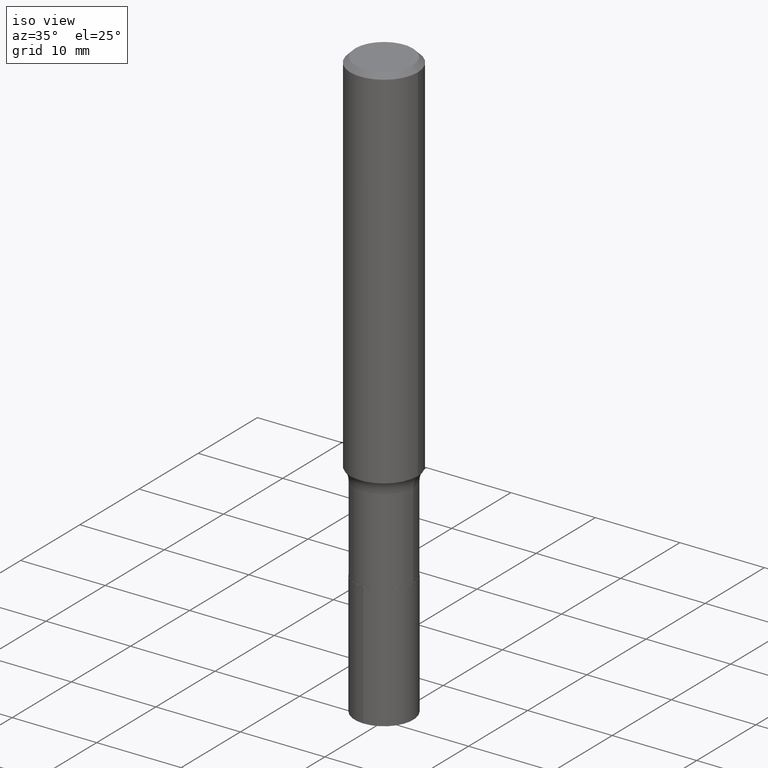
[diagram: clean part render]
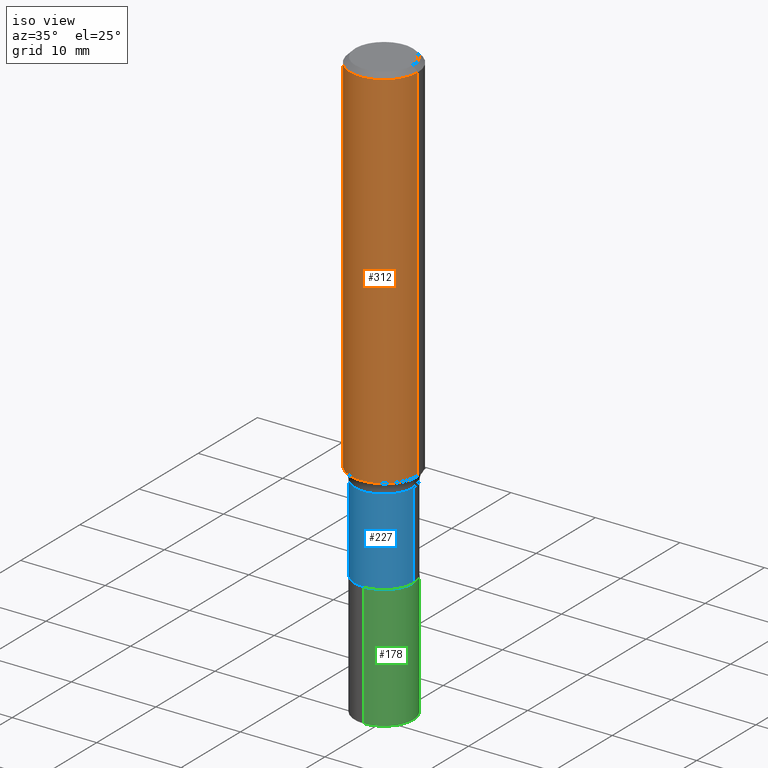
[diagram: same view with three faces highlighted in distinct colors, each labeled with its STEP entity id]
A machine part, iso view with three faces highlighted in distinct colors.
Their STEP definitions:

[orange] entity #312 — the highlighted cylindrical surface (partial cylindrical patch) has radius 4.0005 mm, axis along (-0, 0, 1).
#9 = CYLINDRICAL_SURFACE ( 'NONE', #380, 0.1575000000000000844 ) ;
#10 = CARTESIAN_POINT ( 'NONE',  ( -0.1575000000000002232, -4.898572338728670003E-15, -1.723531236041119241 ) ) ;
#13 = CARTESIAN_POINT ( 'NONE',  ( 0.1575000000000000011, -1.182302868365756679E-15, -0.02362500000000013201 ) ) ;
#14 = VERTEX_POINT ( 'NONE', #10 ) ;
#15 = EDGE_CURVE ( 'NONE', #330, #360, #297, .T. ) ;
#27 = DIRECTION ( 'NONE',  ( 1.000000000000000000, -6.982962677686265133E-15, 0.000000000000000000 ) ) ;
#45 = VECTOR ( 'NONE', #447, 39.37007874015748143 ) ;
#48 = CARTESIAN_POINT ( 'NONE',  ( 0.1575000000000002232, -7.117493769286417454E-15, -1.723531236041119241 ) ) ;
#56 = CARTESIAN_POINT ( 'NONE',  ( -0.1575000000000000844, 1.119104808822158392E-15, -7.747322767151481189E-30 ) ) ;
#76 = AXIS2_PLACEMENT_3D ( 'NONE', #212, #283, #27 ) ;
#87 = ORIENTED_EDGE ( 'NONE', *, *, #15, .F. ) ;
#88 = LINE ( 'NONE', #353, #160 ) ;
#112 = ORIENTED_EDGE ( 'NONE', *, *, #268, .F. ) ;
#158 = DIRECTION ( 'NONE',  ( 1.000000000000000000, -6.982962677686267499E-15, 4.876176775795936353E-29 ) ) ;
#160 = VECTOR ( 'NONE', #379, 39.37007874015748143 ) ;
#168 = FACE_OUTER_BOUND ( 'NONE', #187, .T. ) ;
#187 = EDGE_LOOP ( 'NONE', ( #112, #200, #272, #87 ) ) ;
#199 = CARTESIAN_POINT ( 'NONE',  ( 0.000000000000000000, 0.000000000000000000, 0.000000000000000000 ) ) ;
#200 = ORIENTED_EDGE ( 'NONE', *, *, #426, .T. ) ;
#212 = CARTESIAN_POINT ( 'NONE',  ( 4.214841874224268798E-29, -6.017677147550829184E-15, -1.723531236041119241 ) ) ;
#268 = EDGE_CURVE ( 'NONE', #14, #330, #338, .T. ) ;
#272 = ORIENTED_EDGE ( 'NONE', *, *, #405, .T. ) ;
#282 = CIRCLE ( 'NONE', #76, 0.1575000000000002232 ) ;
#283 = DIRECTION ( 'NONE',  ( -2.445468806185136597E-29, 3.491481338843145583E-15, 1.000000000000000000 ) ) ;
#291 = AXIS2_PLACEMENT_3D ( 'NONE', #337, #304, #445 ) ;
#297 = CIRCLE ( 'NONE', #291, 0.1575000000000000011 ) ;
#304 = DIRECTION ( 'NONE',  ( -2.445468806185136597E-29, 3.491481338843145583E-15, 1.000000000000000000 ) ) ;
#311 = CARTESIAN_POINT ( 'NONE',  ( -0.1575000000000000011, -1.930976888268340109E-15, -0.02362500000000013201 ) ) ;
#312 = ADVANCED_FACE ( 'NONE', ( #168 ), #9, .T. ) ;
#330 = VERTEX_POINT ( 'NONE', #311 ) ;
#337 = CARTESIAN_POINT ( 'NONE',  ( 5.777420054612417601E-31, -8.248624663016977839E-17, -0.02362500000000013201 ) ) ;
#338 = LINE ( 'NONE', #56, #45 ) ;
#353 = CARTESIAN_POINT ( 'NONE',  ( 0.1575000000000000844, -1.099816621735587677E-15, 7.679978421878603638E-30 ) ) ;
#360 = VERTEX_POINT ( 'NONE', #13 ) ;
#379 = DIRECTION ( 'NONE',  ( -2.445468806185136877E-29, 3.491481338843145188E-15, 1.000000000000000000 ) ) ;
#380 = AXIS2_PLACEMENT_3D ( 'NONE', #199, #416, #158 ) ;
#392 = VERTEX_POINT ( 'NONE', #48 ) ;
#405 = EDGE_CURVE ( 'NONE', #392, #360, #88, .T. ) ;
#416 = DIRECTION ( 'NONE',  ( -2.445468806185136597E-29, 3.491481338843145583E-15, 1.000000000000000000 ) ) ;
#426 = EDGE_CURVE ( 'NONE', #14, #392, #282, .T. ) ;
#445 = DIRECTION ( 'NONE',  ( 1.000000000000000000, -6.982962677686265922E-15, 0.000000000000000000 ) ) ;
#447 = DIRECTION ( 'NONE',  ( -2.445468806185136877E-29, 3.491481338843145188E-15, 1.000000000000000000 ) ) ;

[blue] entity #227 — the highlighted cylindrical surface (edge-blend (fillet) strip) has radius 3.4544 mm, axis along (-0, 0, 1).
#3 = VERTEX_POINT ( 'NONE', #370 ) ;
#30 = CARTESIAN_POINT ( 'NONE',  ( -0.1360000000000000098, 9.663381206337363222E-16, -6.689751722746672110E-30 ) ) ;
#58 = DIRECTION ( 'NONE',  ( -2.445468806185136597E-29, 3.491481338843145583E-15, 1.000000000000000000 ) ) ;
#86 = CARTESIAN_POINT ( 'NONE',  ( 0.000000000000000000, 0.000000000000000000, 0.000000000000000000 ) ) ;
#125 = CARTESIAN_POINT ( 'NONE',  ( 4.348288084277790698E-29, -6.208202968596996327E-15, -1.778099999999999792 ) ) ;
#135 = LINE ( 'NONE', #210, #256 ) ;
#165 = CARTESIAN_POINT ( 'NONE',  ( 0.1359999999999999820, -7.157885892762328978E-15, -1.778099999999999792 ) ) ;
#171 = DIRECTION ( 'NONE',  ( 1.000000000000000000, -6.982962677686265922E-15, 4.876176775795934672E-29 ) ) ;
#197 = AXIS2_PLACEMENT_3D ( 'NONE', #125, #269, #410 ) ;
#203 = ORIENTED_EDGE ( 'NONE', *, *, #457, .F. ) ;
#210 = CARTESIAN_POINT ( 'NONE',  ( 0.1360000000000000098, -9.496829241653322569E-16, 6.631600415082472006E-30 ) ) ;
#220 = ORIENTED_EDGE ( 'NONE', *, *, #396, .F. ) ;
#227 = ADVANCED_FACE ( 'NONE', ( #407 ), #234, .T. ) ;
#231 = ORIENTED_EDGE ( 'NONE', *, *, #302, .T. ) ;
#234 = CYLINDRICAL_SURFACE ( 'NONE', #273, 0.1360000000000000098 ) ;
#242 = DIRECTION ( 'NONE',  ( -2.445468806185136877E-29, 3.491481338843145188E-15, 1.000000000000000000 ) ) ;
#254 = VERTEX_POINT ( 'NONE', #165 ) ;
#256 = VECTOR ( 'NONE', #242, 39.37007874015748143 ) ;
#269 = DIRECTION ( 'NONE',  ( -2.445468806185136597E-29, 3.491481338843145583E-15, 1.000000000000000000 ) ) ;
#273 = AXIS2_PLACEMENT_3D ( 'NONE', #86, #344, #171 ) ;
#275 = DIRECTION ( 'NONE',  ( 1.000000000000000000, -6.982962677686265922E-15, 0.000000000000000000 ) ) ;
#287 = AXIS2_PLACEMENT_3D ( 'NONE', #341, #58, #275 ) ;
#296 = VERTEX_POINT ( 'NONE', #366 ) ;
#302 = EDGE_CURVE ( 'NONE', #3, #296, #335, .T. ) ;
#316 = CARTESIAN_POINT ( 'NONE',  ( -0.1359999999999999820, -5.944176319271559684E-15, -1.778099999999999792 ) ) ;
#335 = CIRCLE ( 'NONE', #287, 0.1360000000000000375 ) ;
#341 = CARTESIAN_POINT ( 'NONE',  ( 5.332100185006071663E-29, -7.612825911213594108E-15, -2.180400000000000116 ) ) ;
#344 = DIRECTION ( 'NONE',  ( -2.445468806185136597E-29, 3.491481338843145583E-15, 1.000000000000000000 ) ) ;
#366 = CARTESIAN_POINT ( 'NONE',  ( 0.1360000000000000375, -8.562508835378926759E-15, -2.180400000000000116 ) ) ;
#370 = CARTESIAN_POINT ( 'NONE',  ( -0.1360000000000000375, -5.944176319271559684E-15, -2.180400000000000116 ) ) ;
#372 = VECTOR ( 'NONE', #418, 39.37007874015748143 ) ;
#396 = EDGE_CURVE ( 'NONE', #443, #254, #449, .T. ) ;
#398 = ORIENTED_EDGE ( 'NONE', *, *, #461, .T. ) ;
#407 = FACE_OUTER_BOUND ( 'NONE', #411, .T. ) ;
#410 = DIRECTION ( 'NONE',  ( 1.000000000000000000, -6.982962677686269077E-15, 0.000000000000000000 ) ) ;
#411 = EDGE_LOOP ( 'NONE', ( #203, #231, #398, #220 ) ) ;
#418 = DIRECTION ( 'NONE',  ( -2.445468806185136877E-29, 3.491481338843145188E-15, 1.000000000000000000 ) ) ;
#443 = VERTEX_POINT ( 'NONE', #316 ) ;
#449 = CIRCLE ( 'NONE', #197, 0.1359999999999999820 ) ;
#454 = LINE ( 'NONE', #30, #372 ) ;
#457 = EDGE_CURVE ( 'NONE', #3, #443, #454, .T. ) ;
#461 = EDGE_CURVE ( 'NONE', #296, #254, #135, .T. ) ;

[green] entity #178 — the highlighted cylindrical surface (edge-blend (fillet) strip) has radius 3.4544 mm, axis along (-0, 0, 1).
#2 = AXIS2_PLACEMENT_3D ( 'NONE', #423, #134, #66 ) ;
#43 = VERTEX_POINT ( 'NONE', #415 ) ;
#46 = EDGE_CURVE ( 'NONE', #156, #49, #47, .T. ) ;
#47 = LINE ( 'NONE', #129, #307 ) ;
#49 = VERTEX_POINT ( 'NONE', #229 ) ;
#50 = DIRECTION ( 'NONE',  ( -2.445082877625027389E-29, 3.492034010506911501E-15, 1.000000000000000000 ) ) ;
#57 = DIRECTION ( 'NONE',  ( -2.445082877625027389E-29, 3.492034010506911501E-15, 1.000000000000000000 ) ) ;
#66 = DIRECTION ( 'NONE',  ( -6.982962677686265922E-15, -1.000000000000000000, 4.017423520094504617E-15 ) ) ;
#92 = ORIENTED_EDGE ( 'NONE', *, *, #216, .T. ) ;
#101 = DIRECTION ( 'NONE',  ( -6.982962677686265922E-15, -1.000000000000000000, 4.017423520094504617E-15 ) ) ;
#102 = EDGE_CURVE ( 'NONE', #49, #292, #236, .T. ) ;
#110 = ORIENTED_EDGE ( 'NONE', *, *, #116, .T. ) ;
#116 = EDGE_CURVE ( 'NONE', #156, #43, #170, .T. ) ;
#117 = EDGE_LOOP ( 'NONE', ( #110, #92, #363, #436 ) ) ;
#119 = AXIS2_PLACEMENT_3D ( 'NONE', #284, #315, #101 ) ;
#129 = CARTESIAN_POINT ( 'NONE',  ( -9.496829241652788115E-16, -0.1360000000000076148, -2.180899999999999395 ) ) ;
#134 = DIRECTION ( 'NONE',  ( -2.445082877625027389E-29, 3.492034010506911501E-15, 1.000000000000000000 ) ) ;
#143 = CYLINDRICAL_SURFACE ( 'NONE', #2, 0.1360000000000000098 ) ;
#156 = VERTEX_POINT ( 'NONE', #281 ) ;
#170 = CIRCLE ( 'NONE', #255, 0.1360000000000000098 ) ;
#178 = ADVANCED_FACE ( 'NONE', ( #453 ), #143, .T. ) ;
#183 = VECTOR ( 'NONE', #50, 39.37007874015748143 ) ;
#216 = EDGE_CURVE ( 'NONE', #43, #292, #404, .T. ) ;
#229 = CARTESIAN_POINT ( 'NONE',  ( -9.496829241652788115E-16, -0.1360000000000076148, -2.180899999999999395 ) ) ;
#236 = CIRCLE ( 'NONE', #119, 0.1360000000000000098 ) ;
#255 = AXIS2_PLACEMENT_3D ( 'NONE', #277, #318, #459 ) ;
#271 = CARTESIAN_POINT ( 'NONE',  ( 9.663381206338035726E-16, 0.1359999999999923770, -2.180900000000000283 ) ) ;
#277 = CARTESIAN_POINT ( 'NONE',  ( 6.739245574043556692E-29, -9.622491207924491647E-15, -2.755900000000000460 ) ) ;
#281 = CARTESIAN_POINT ( 'NONE',  ( -9.496829241652648093E-16, -0.1360000000000096132, -2.755900000000000016 ) ) ;
#284 = CARTESIAN_POINT ( 'NONE',  ( 5.333322919409164465E-29, -7.614571651883016400E-15, -2.180899999999999839 ) ) ;
#292 = VERTEX_POINT ( 'NONE', #271 ) ;
#307 = VECTOR ( 'NONE', #57, 39.37007874015748143 ) ;
#315 = DIRECTION ( 'NONE',  ( -2.445082877625027389E-29, 3.492034010506911501E-15, 1.000000000000000000 ) ) ;
#318 = DIRECTION ( 'NONE',  ( -2.445082877625027389E-29, 3.492034010506911501E-15, 1.000000000000000000 ) ) ;
#363 = ORIENTED_EDGE ( 'NONE', *, *, #102, .F. ) ;
#369 = CARTESIAN_POINT ( 'NONE',  ( 9.663381206337895703E-16, 0.1359999999999923770, -2.180900000000000283 ) ) ;
#404 = LINE ( 'NONE', #369, #183 ) ;
#415 = CARTESIAN_POINT ( 'NONE',  ( 9.663381206337964728E-16, 0.1359999999999903786, -2.755900000000000905 ) ) ;
#423 = CARTESIAN_POINT ( 'NONE',  ( 5.333322919409164465E-29, -7.614571651883016400E-15, -2.180899999999999839 ) ) ;
#436 = ORIENTED_EDGE ( 'NONE', *, *, #46, .F. ) ;
#453 = FACE_OUTER_BOUND ( 'NONE', #117, .T. ) ;
#459 = DIRECTION ( 'NONE',  ( -6.982962677686265922E-15, -1.000000000000000000, 4.017423520094504617E-15 ) ) ;